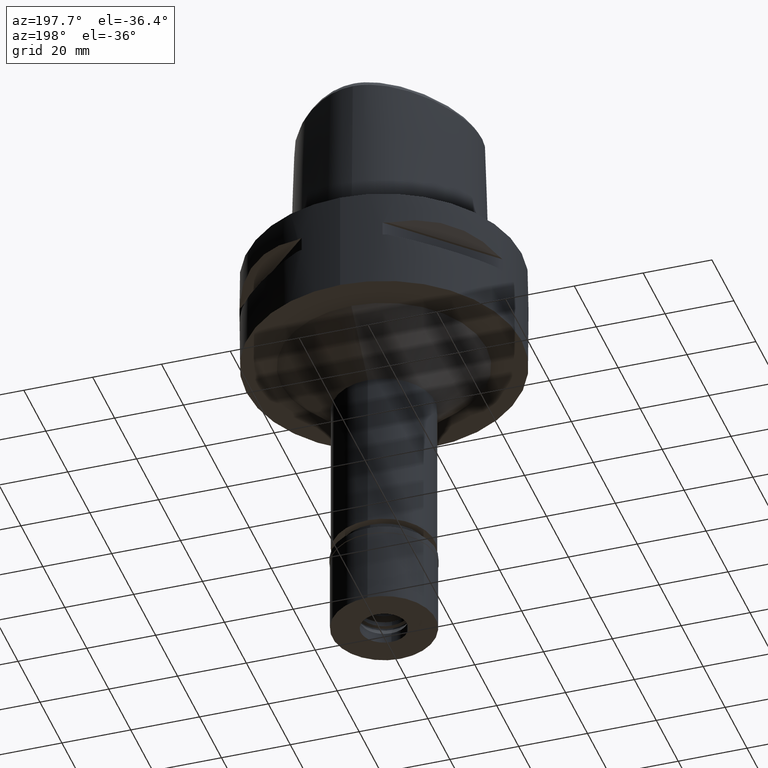
[diagram: clean part render]
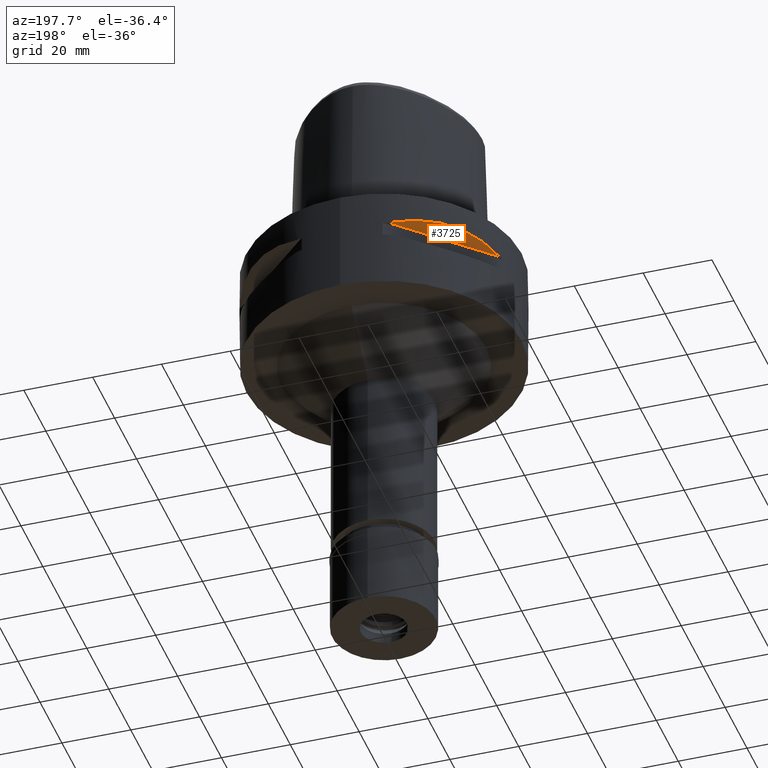
[diagram: same view with one face highlighted and labeled with its STEP entity id]
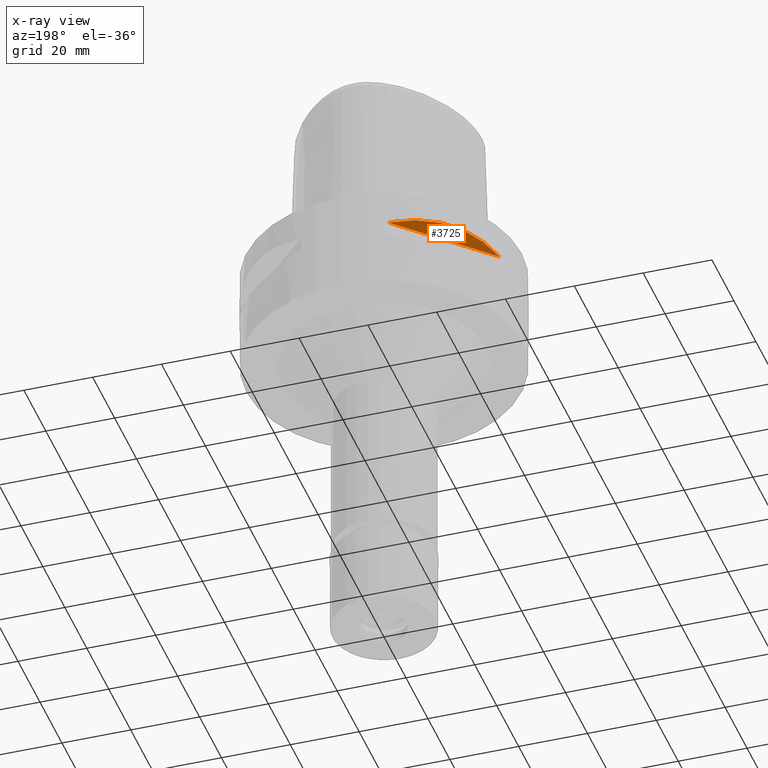
[diagram: x-ray of the same camera — body ghosted, the highlighted face saturated]
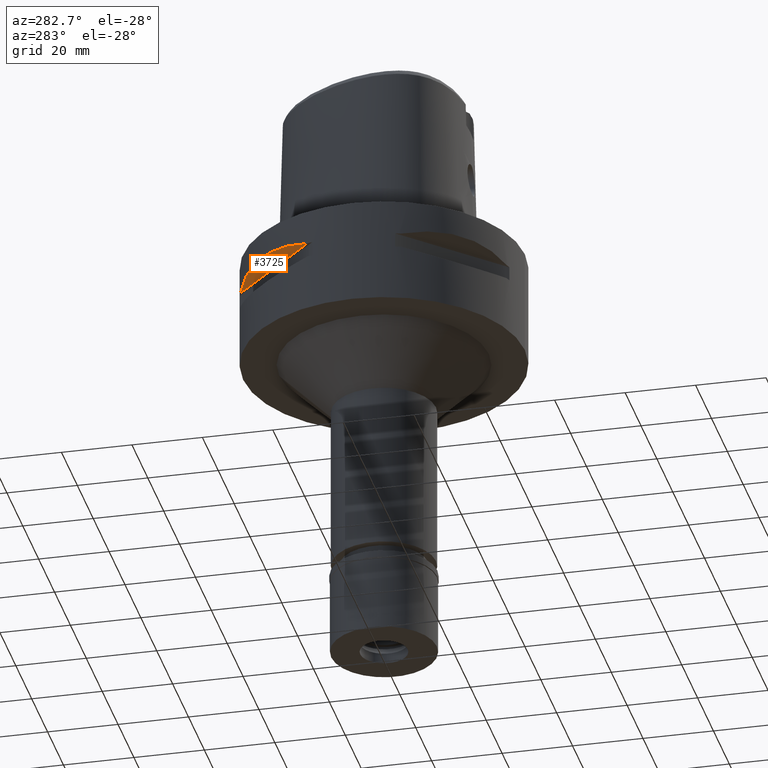
[diagram: same view with one face highlighted and labeled with its STEP entity id]
A machine part, auxiliary view. The second image highlights one B-rep face of the part: STEP entity #3725.
The next image is the same camera in x-ray: the body ghosted, the highlighted face saturated — about 0% of this face is hidden behind the body in this view.
A second angle (auxiliary view) of the same face is appended — the face is thin or edge-on in the first view.
In plain terms, the highlighted planar face has unit normal (0.3536, -0.3536, 0.866).
Its self-contained STEP definition (entity closure, byte-faithful):
#622 = ORIENTED_EDGE ( 'NONE', *, *, #1825, .F. ) ;
#652 = EDGE_LOOP ( 'NONE', ( #3103, #622 ) ) ;
#910 = CARTESIAN_POINT ( 'NONE',  ( -35.41591128513821474, 18.83182902076458021, -8.619912199391261964 ) ) ;
#959 = CARTESIAN_POINT ( 'NONE',  ( -13.23717311056000057, 37.74622163926999718, -9.950000000000999378 ) ) ;
#964 = FACE_OUTER_BOUND ( 'NONE', #652, .T. ) ;
#1270 = CARTESIAN_POINT ( 'NONE',  ( -37.74622163926999718, 13.23717311056000057, -9.950000000002001244 ) ) ;
#1348 = PLANE ( 'NONE',  #2774 ) ;
#1371 = DIRECTION ( 'NONE',  ( -0.7071067811865474617, -0.7071067811865474617, 0.0000000000000000000 ) ) ;
#1457 = VECTOR ( 'NONE', #1371, 1000.000000000000114 ) ;
#1689 = CARTESIAN_POINT ( 'NONE',  ( -23.88355431037097887, 32.22577213857957901, -7.859897272571252813 ) ) ;
#1719 = CARTESIAN_POINT ( 'NONE',  ( -13.23717311056000057, 37.74622163926999718, -9.950000000002001244 ) ) ;
#1724 = DIRECTION ( 'NONE',  ( -0.7071067811865475727, -0.7071067811865475727, 0.0000000000000000000 ) ) ;
#1825 = EDGE_CURVE ( 'NONE', #2070, #3357, #2842, .T. ) ;
#1898 = CARTESIAN_POINT ( 'NONE',  ( -13.23717311056000057, 37.74622163926999718, -9.950000000002001244 ) ) ;
#2058 = CARTESIAN_POINT ( 'NONE',  ( -30.36058330527164983, 26.20795918965216842, -7.669863843587147123 ) ) ;
#2070 = VERTEX_POINT ( 'NONE', #1898 ) ;
#2135 = CARTESIAN_POINT ( 'NONE',  ( -36.74070924257178206, 16.10442380448742483, -9.189948522868263581 ) ) ;
#2478 = CARTESIAN_POINT ( 'NONE',  ( -26.20795918965216131, 30.36058330527165694, -7.669882118573495333 ) ) ;
#2499 = CARTESIAN_POINT ( 'NONE',  ( -18.83173199174708046, 35.41596287855381320, -8.619939612211808821 ) ) ;
#2548 = LINE ( 'NONE', #959, #1457 ) ;
#2774 = AXIS2_PLACEMENT_3D ( 'NONE', #4083, #3344, #1724 ) ;
#2842 = B_SPLINE_CURVE_WITH_KNOTS ( 'NONE', 3,
 ( #1719, #2928, #2499, #1689, #2478, #2058, #4877, #910, #2135, #1270 ),
 .UNSPECIFIED., .F., .F.,
 ( 4, 2, 2, 2, 4 ),
 ( 0.0000000000000000000, 0.2500000000000001110, 0.5000000000000002220, 0.7500000000000001110, 1.000000000000000000 ),
 .UNSPECIFIED. ) ;
#2928 = CARTESIAN_POINT ( 'NONE',  ( -16.10435486228978874, 36.74073341982094831, -9.189966798081966814 ) ) ;
#3103 = ORIENTED_EDGE ( 'NONE', *, *, #4798, .T. ) ;
#3344 = DIRECTION ( 'NONE',  ( 0.3535533905933054277, -0.3535533905933054277, 0.8660254037844128394 ) ) ;
#3357 = VERTEX_POINT ( 'NONE', #4165 ) ;
#3725 = ADVANCED_FACE ( 'NONE', ( #964 ), #1348, .F. ) ;
#4083 = CARTESIAN_POINT ( 'NONE',  ( -47.02260094891000364, 11.66726188958000066, -6.803847577293001159 ) ) ;
#4165 = CARTESIAN_POINT ( 'NONE',  ( -37.74622163926999718, 13.23717311056000057, -9.950000000002001244 ) ) ;
#4798 = EDGE_CURVE ( 'NONE', #2070, #3357, #2548, .T. ) ;
#4877 = CARTESIAN_POINT ( 'NONE',  ( -32.22570670470196319, 23.88364259920621890, -7.859869859750699739 ) ) ;